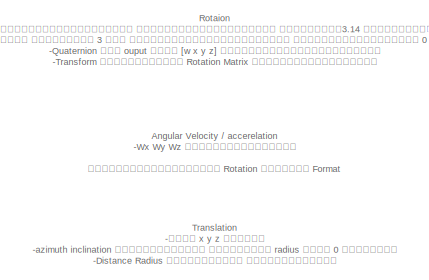
[diagram: root canvas - part 1/5, top left region]
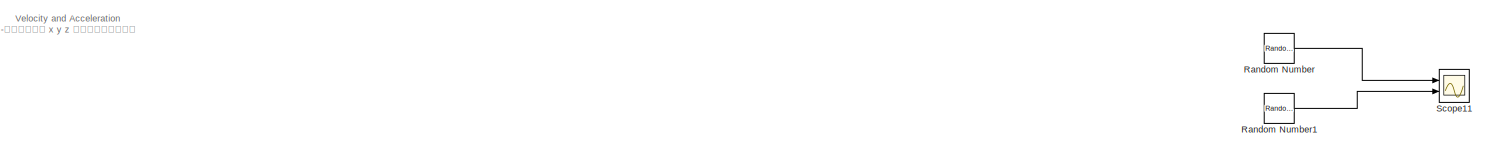
[diagram: root canvas - part 2/5, full width, top band]
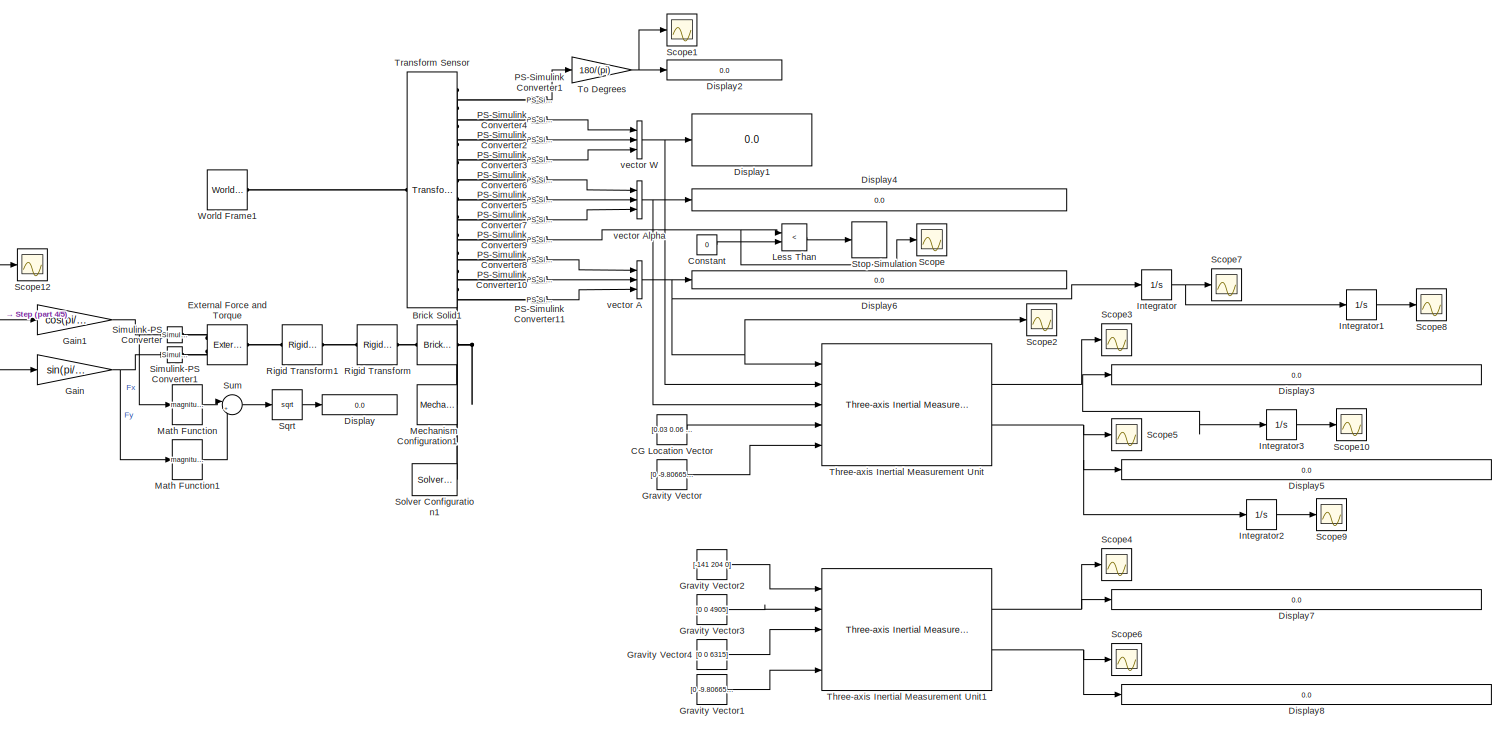
[diagram: root canvas - part 3/5, full width, middle band]
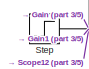
[diagram: root canvas - part 4/5, middle left region]
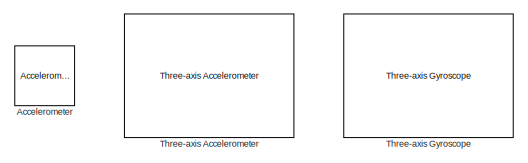
[diagram: root canvas - part 5/5, bottom right region]
MODEL slx_b63a206c69d0
KIND model
CONFIG AbsTol = auto
CONFIG EnableMultiTasking = off
CONFIG FixedStep = auto
CONFIG MaxStep = auto
CONFIG MinStep = auto
CONFIG RelTol = 1e-3
CONFIG SampleTimeConstraint = Unconstrained
CONFIG SolverName = VariableStepAuto
CONFIG StartTime = 0.0
CONFIG StopTime = 10
BLOCK [Reference] Accelerometer  REF=ee_lib/Sensors &
Transducers/Accelerometer
  Commented = on
  Ports = [0, 0, 0, 0, 0, 1, 2]
  SourceBlock = ee_lib/Sensors &\nTransducers/Accelerometer
  SourceProductBaseCode = PS
  SourceType = Accelerometer
BLOCK [Reference] Brick Solid1  REF=sm_lib/Body Elements/Brick Solid
  NameLocation = top
  Ports = [0, 0, 0, 0, 0, 1, 1]
  SourceBlock = sm_lib/Body Elements/Brick Solid
  SourceProductBaseCode = MS
  SourceType = Brick Solid
BLOCK [Constant] CG Location Vector
  Commented = on
  Value = [0.03 0.06 0.005]
BLOCK [Constant] Constant
  Value = 0
BLOCK [Display] Display
  Decimation = 1
  Ports = [1]
BLOCK [Display] Display1
  Decimation = 1
  Format = long
  Ports = [1]
BLOCK [Display] Display2
  Decimation = 1
  Format = long
  Ports = [1]
BLOCK [Display] Display3
  Decimation = 1
  Format = long
  Ports = [1]
BLOCK [Display] Display4
  Decimation = 1
  Format = long
  Ports = [1]
BLOCK [Display] Display5
  Decimation = 1
  Format = long
  Ports = [1]
BLOCK [Display] Display6
  Decimation = 1
  Format = long
  Ports = [1]
BLOCK [Display] Display7
  Decimation = 1
  Format = long
  Ports = [1]
BLOCK [Display] Display8
  Decimation = 1
  Format = long
  Ports = [1]
BLOCK [Reference] External Force and Torque  REF=sm_lib/Forces and
Torques/External Force
and Torque
  Ports = [0, 0, 0, 0, 0, 2, 1]
  SourceBlock = sm_lib/Forces and\nTorques/External Force\nand Torque
  SourceProductBaseCode = MS
  SourceType = External Force\nand Torque
BLOCK [Gain] Gain
  Gain = sin(pi/6)
BLOCK [Gain] Gain1
  Gain = cos(pi/6)
BLOCK [Constant] Gravity Vector
  Value = [0 -9.80665 0]
BLOCK [Constant] Gravity Vector1
  Value = [0 -9.80665 0]
BLOCK [Constant] Gravity Vector2
  Value = [-141 204 0]
BLOCK [Constant] Gravity Vector3
  Value = [0 0 4905]
BLOCK [Constant] Gravity Vector4
  Value = [0 0 6315]
BLOCK [Integrator] Integrator
  Ports = [1, 1]
BLOCK [Integrator] Integrator1
  Ports = [1, 1]
BLOCK [Integrator] Integrator2
  Ports = [1, 1]
BLOCK [Integrator] Integrator3
  Ports = [1, 1]
BLOCK [RelationalOperator] Less Than
  InputSameDT = off
  Operator = <
  OutDataTypeStr = boolean
  Ports = [2, 1]
  RndMeth = Simplest
BLOCK [Math] Math Function
  Operator = magnitude^2
  Ports = [1, 1]
BLOCK [Math] Math Function1
  Operator = magnitude^2
  Ports = [1, 1]
BLOCK [Reference] Mechanism Configuration1  REF=sm_lib/Utilities/Mechanism
Configuration
  Ports = [0, 0, 0, 0, 0, 0, 1]
  SourceBlock = sm_lib/Utilities/Mechanism\nConfiguration
  SourceProductBaseCode = MS
  SourceType = Mechanism\nConfiguration
BLOCK [Reference] PS-Simulink Converter1  REF=nesl_utility/PS-Simulink
Converter
  Ports = [0, 1, 0, 0, 0, 1]
  SourceBlock = nesl_utility/PS-Simulink\nConverter
  SourceProductBaseCode = PW,SS
  SourceType = PS-Simulink\nConverter
BLOCK [Reference] PS-Simulink Converter10  REF=nesl_utility/PS-Simulink
Converter
  Ports = [0, 1, 0, 0, 0, 1]
  SourceBlock = nesl_utility/PS-Simulink\nConverter
  SourceProductBaseCode = PW,SS
  SourceType = PS-Simulink\nConverter
BLOCK [Reference] PS-Simulink Converter11  REF=nesl_utility/PS-Simulink
Converter
  Ports = [0, 1, 0, 0, 0, 1]
  SourceBlock = nesl_utility/PS-Simulink\nConverter
  SourceProductBaseCode = PW,SS
  SourceType = PS-Simulink\nConverter
BLOCK [Reference] PS-Simulink Converter2  REF=nesl_utility/PS-Simulink
Converter
  Ports = [0, 1, 0, 0, 0, 1]
  SourceBlock = nesl_utility/PS-Simulink\nConverter
  SourceProductBaseCode = PW,SS
  SourceType = PS-Simulink\nConverter
BLOCK [Reference] PS-Simulink Converter3  REF=nesl_utility/PS-Simulink
Converter
  Ports = [0, 1, 0, 0, 0, 1]
  SourceBlock = nesl_utility/PS-Simulink\nConverter
  SourceProductBaseCode = PW,SS
  SourceType = PS-Simulink\nConverter
BLOCK [Reference] PS-Simulink Converter4  REF=nesl_utility/PS-Simulink
Converter
  Ports = [0, 1, 0, 0, 0, 1]
  SourceBlock = nesl_utility/PS-Simulink\nConverter
  SourceProductBaseCode = PW,SS
  SourceType = PS-Simulink\nConverter
BLOCK [Reference] PS-Simulink Converter5  REF=nesl_utility/PS-Simulink
Converter
  Ports = [0, 1, 0, 0, 0, 1]
  SourceBlock = nesl_utility/PS-Simulink\nConverter
  SourceProductBaseCode = PW,SS
  SourceType = PS-Simulink\nConverter
BLOCK [Reference] PS-Simulink Converter6  REF=nesl_utility/PS-Simulink
Converter
  Ports = [0, 1, 0, 0, 0, 1]
  SourceBlock = nesl_utility/PS-Simulink\nConverter
  SourceProductBaseCode = PW,SS
  SourceType = PS-Simulink\nConverter
BLOCK [Reference] PS-Simulink Converter7  REF=nesl_utility/PS-Simulink
Converter
  Ports = [0, 1, 0, 0, 0, 1]
  SourceBlock = nesl_utility/PS-Simulink\nConverter
  SourceProductBaseCode = PW,SS
  SourceType = PS-Simulink\nConverter
BLOCK [Reference] PS-Simulink Converter8  REF=nesl_utility/PS-Simulink
Converter
  Ports = [0, 1, 0, 0, 0, 1]
  SourceBlock = nesl_utility/PS-Simulink\nConverter
  SourceProductBaseCode = PW,SS
  SourceType = PS-Simulink\nConverter
BLOCK [Reference] PS-Simulink Converter9  REF=nesl_utility/PS-Simulink
Converter
  Ports = [0, 1, 0, 0, 0, 1]
  SourceBlock = nesl_utility/PS-Simulink\nConverter
  SourceProductBaseCode = PW,SS
  SourceType = PS-Simulink\nConverter
BLOCK [RandomNumber] Random Number
  SampleTime = 0.1
BLOCK [RandomNumber] Random Number1
  SampleTime = 0.1
  Variance = 2
BLOCK [Reference] Rigid Transform  REF=sm_lib/Frames and
Transforms/Rigid
Transform
  Ports = [0, 0, 0, 0, 0, 1, 1]
  SourceBlock = sm_lib/Frames and\nTransforms/Rigid\nTransform
  SourceProductBaseCode = MS
  SourceType = Rigid\nTransform
BLOCK [Reference] Rigid Transform1  REF=sm_lib/Frames and
Transforms/Rigid
Transform
  Ports = [0, 0, 0, 0, 0, 1, 1]
  SourceBlock = sm_lib/Frames and\nTransforms/Rigid\nTransform
  SourceProductBaseCode = MS
  SourceType = Rigid\nTransform
BLOCK [Scope] Scope
  Floating = off
  NumInputPorts = 1
  Ports = [1]
  ScopeSpecificationString = Simulink.scopes.TimeScopeBlockCfg('CurrentConfiguration', extmgr.ConfigurationSet(extmgr.Configuration('Core','General UI',true),extmgr.Configuration('Core','Source UI',true),extmgr.Configuration('Sources','WiredSimulink',true),extmgr.Configuration('Visuals','Time Domain',true,'SerializedDisplays',{struct('MinYLimReal','-0.88632','MaxYLimReal','7.97686','YLabelReal','','MinYLimMag','0.00000','MaxY...<+1411ch>
BLOCK [Scope] Scope1
  Floating = off
  NumInputPorts = 1
  Ports = [1]
  ScopeSpecificationString = Simulink.scopes.TimeScopeBlockCfg('CurrentConfiguration', extmgr.ConfigurationSet(extmgr.Configuration('Core','General UI',true),extmgr.Configuration('Core','Source UI',true),extmgr.Configuration('Sources','WiredSimulink',true,'DataLoggingVariableName','ScopeData3'),extmgr.Configuration('Visuals','Time Domain',true,'SerializedDisplays',{struct('MinYLimReal','75.14075','MaxYLimReal','188.60119','YL...<+1423ch>
BLOCK [Scope] Scope10
  Floating = off
  NumInputPorts = 1
  Ports = [1]
  ScopeSpecificationString = Simulink.scopes.TimeScopeBlockCfg('CurrentConfiguration', extmgr.ConfigurationSet(extmgr.Configuration('Core','General UI',true),extmgr.Configuration('Core','Source UI',true),extmgr.Configuration('Sources','WiredSimulink',true,'DataLoggingVariableName','ScopeData10'),extmgr.Configuration('Visuals','Time Domain',true,'SerializedDisplays',{struct('MinYLimReal','-0.62404','MaxYLimReal','5.53765','YLa...<+1577ch>
BLOCK [Scope] Scope11
  Floating = off
  NumInputPorts = 2
  Ports = [2]
  ScopeSpecificationString = Simulink.scopes.TimeScopeBlockCfg('CurrentConfiguration', extmgr.ConfigurationSet(extmgr.Configuration('Core','General UI',true),extmgr.Configuration('Core','Source UI',true),extmgr.Configuration('Sources','WiredSimulink',true,'DataLoggingVariableName','ScopeData1'),extmgr.Configuration('Visuals','Time Domain',true,'SerializedDisplays',{struct('MinYLimReal','0.63708','MaxYLimReal','0.64848','YLabe...<+1431ch>
BLOCK [Scope] Scope12
  Floating = off
  NumInputPorts = 1
  Ports = [1]
  ScopeSpecificationString = Simulink.scopes.TimeScopeBlockCfg('CurrentConfiguration', extmgr.ConfigurationSet(extmgr.Configuration('Core','General UI',true),extmgr.Configuration('Core','Source UI',true),extmgr.Configuration('Sources','WiredSimulink',true,'DataLoggingVariableName','ScopeData1'),extmgr.Configuration('Visuals','Time Domain',true,'SerializedDisplays',{struct('MinYLimReal','-37.5','MaxYLimReal','337.5','YLabelRea...<+1374ch>
BLOCK [Scope] Scope2
  Floating = off
  NumInputPorts = 1
  Ports = [1]
  ScopeSpecificationString = Simulink.scopes.TimeScopeBlockCfg('CurrentConfiguration', extmgr.ConfigurationSet(extmgr.Configuration('Core','General UI',true),extmgr.Configuration('Core','Source UI',true),extmgr.Configuration('Sources','WiredSimulink',true,'DataLoggingVariableName','ScopeData4'),extmgr.Configuration('Visuals','Time Domain',true,'SerializedDisplays',{struct('MinYLimReal','-331.37886','MaxYLimReal','321.56157','...<+1514ch>
BLOCK [Scope] Scope3
  Floating = off
  NumInputPorts = 1
  Ports = [1]
  ScopeSpecificationString = Simulink.scopes.TimeScopeBlockCfg('CurrentConfiguration', extmgr.ConfigurationSet(extmgr.Configuration('Core','General UI',true),extmgr.Configuration('Core','Source UI',true),extmgr.Configuration('Sources','WiredSimulink',true,'DataLoggingVariableName','ScopeData1'),extmgr.Configuration('Visuals','Time Domain',true,'SerializedDisplays',{struct('MinYLimReal','305.18548','MaxYLimReal','479.02666','Y...<+1739ch>
BLOCK [Scope] Scope4
  Floating = off
  NumInputPorts = 1
  Ports = [1]
  ScopeSpecificationString = Simulink.scopes.TimeScopeBlockCfg('CurrentConfiguration', extmgr.ConfigurationSet(extmgr.Configuration('Core','General UI',true),extmgr.Configuration('Core','Source UI',true),extmgr.Configuration('Sources','WiredSimulink',true,'DataLoggingVariableName','ScopeData5'),extmgr.Configuration('Visuals','Time Domain',true,'SerializedDisplays',{struct('MinYLimReal','-193.35798','MaxYLimReal','269.23622','...<+1742ch>
BLOCK [Scope] Scope5
  Floating = off
  NumInputPorts = 1
  Ports = [1]
  ScopeSpecificationString = Simulink.scopes.TimeScopeBlockCfg('CurrentConfiguration', extmgr.ConfigurationSet(extmgr.Configuration('Core','General UI',true),extmgr.Configuration('Core','Source UI',true),extmgr.Configuration('Sources','WiredSimulink',true,'DataLoggingVariableName','ScopeData2'),extmgr.Configuration('Visuals','Time Domain',true,'SerializedDisplays',{struct('MinYLimReal','-606.95413','MaxYLimReal','5461.91799',...<+1710ch>
BLOCK [Scope] Scope6
  Floating = off
  NumInputPorts = 1
  Ports = [1]
  ScopeSpecificationString = Simulink.scopes.TimeScopeBlockCfg('CurrentConfiguration', extmgr.ConfigurationSet(extmgr.Configuration('Core','General UI',true),extmgr.Configuration('Core','Source UI',true),extmgr.Configuration('Sources','WiredSimulink',true,'DataLoggingVariableName','ScopeData6'),extmgr.Configuration('Visuals','Time Domain',true,'SerializedDisplays',{struct('MinYLimReal','-607.40114','MaxYLimReal','5465.94108',...<+1710ch>
BLOCK [Scope] Scope7
  Floating = off
  NumInputPorts = 1
  Ports = [1]
  ScopeSpecificationString = Simulink.scopes.TimeScopeBlockCfg('CurrentConfiguration', extmgr.ConfigurationSet(extmgr.Configuration('Core','General UI',true),extmgr.Configuration('Core','Source UI',true),extmgr.Configuration('Sources','WiredSimulink',true,'DataLoggingVariableName','ScopeData7'),extmgr.Configuration('Visuals','Time Domain',true,'SerializedDisplays',{struct('MinYLimReal','-4.7009','MaxYLimReal','5.99198','YLabe...<+1567ch>
BLOCK [Scope] Scope8
  Floating = off
  NumInputPorts = 1
  Ports = [1]
  ScopeSpecificationString = Simulink.scopes.TimeScopeBlockCfg('CurrentConfiguration', extmgr.ConfigurationSet(extmgr.Configuration('Core','General UI',true),extmgr.Configuration('Core','Source UI',true),extmgr.Configuration('Sources','WiredSimulink',true,'DataLoggingVariableName','ScopeData8'),extmgr.Configuration('Visuals','Time Domain',true,'SerializedDisplays',{struct('MinYLimReal','-0.1167','MaxYLimReal','1.05026','YLabe...<+1570ch>
BLOCK [Scope] Scope9
  Floating = off
  NumInputPorts = 1
  Ports = [1]
  ScopeSpecificationString = Simulink.scopes.TimeScopeBlockCfg('CurrentConfiguration', extmgr.ConfigurationSet(extmgr.Configuration('Core','General UI',true),extmgr.Configuration('Core','Source UI',true),extmgr.Configuration('Sources','WiredSimulink',true,'DataLoggingVariableName','ScopeData9'),extmgr.Configuration('Visuals','Time Domain',true,'SerializedDisplays',{struct('MinYLimReal','-233.02086','MaxYLimReal','2097.05017',...<+1594ch>
BLOCK [Reference] Simulink-PS Converter  REF=nesl_utility/Simulink-PS
Converter
  Ports = [1, 0, 0, 0, 0, 0, 1]
  SourceBlock = nesl_utility/Simulink-PS\nConverter
  SourceProductBaseCode = PW,SS
  SourceType = Simulink-PS\nConverter
BLOCK [Reference] Simulink-PS Converter1  REF=nesl_utility/Simulink-PS
Converter
  Ports = [1, 0, 0, 0, 0, 0, 1]
  SourceBlock = nesl_utility/Simulink-PS\nConverter
  SourceProductBaseCode = PW,SS
  SourceType = Simulink-PS\nConverter
BLOCK [Reference] Solver Configuration1  REF=nesl_utility/Solver
Configuration
  Ports = [0, 0, 0, 0, 0, 0, 1]
  SourceBlock = nesl_utility/Solver\nConfiguration
  SourceProductBaseCode = PW,SS
  SourceType = Solver\nConfiguration
BLOCK [Sqrt] Sqrt
BLOCK [Step] Step
  After = 0
  Before = 300
  SampleTime = 0
  Time = 0.01
BLOCK [Stop] Stop Simulation
BLOCK [Sum] Sum
  Inputs = |++
  Ports = [2, 1]
BLOCK [Reference] Three-axis Accelerometer  REF=aerolibnav/Three-axis Accelerometer
  Commented = on
  Ports = [5, 1]
  SourceBlock = aerolibnav/Three-axis Accelerometer
  SourceProductBaseCode = AE
  SourceType = Three-axis Accelerometer
BLOCK [Reference] Three-axis Gyroscope  REF=aerolibnav/Three-axis Gyroscope
  Commented = on
  Ports = [2, 1]
  SourceBlock = aerolibnav/Three-axis Gyroscope
  SourceProductBaseCode = AE
  SourceType = Three-axis Gyroscope
BLOCK [Reference] Three-axis Inertial Measurement Unit  REF=aerolibnav/Three-axis Inertial
Measurement Unit
  Ports = [5, 2]
  SourceBlock = aerolibnav/Three-axis Inertial\nMeasurement Unit
  SourceProductBaseCode = AE
  SourceType = Three-axis Inertial Measurement Unit
BLOCK [Reference] Three-axis Inertial Measurement Unit1  REF=aerolibnav/Three-axis Inertial
Measurement Unit
  Ports = [5, 2]
  SourceBlock = aerolibnav/Three-axis Inertial\nMeasurement Unit
  SourceProductBaseCode = AE
  SourceType = Three-axis Inertial Measurement Unit
BLOCK [Gain] To Degrees
  Gain = 180/(pi)
  NameLocation = top
BLOCK [Reference] Transform Sensor  REF=sm_lib/Frames and
Transforms/Transform
Sensor
  Ports = [0, 0, 0, 0, 0, 1, 12]
  SourceBlock = sm_lib/Frames and\nTransforms/Transform\nSensor
  SourceProductBaseCode = MS
  SourceType = Transform\nSensor
BLOCK [Reference] World Frame1  REF=sm_lib/Frames and
Transforms/World Frame
  Ports = [0, 0, 0, 0, 0, 0, 1]
  SourceBlock = sm_lib/Frames and\nTransforms/World Frame
  SourceProductBaseCode = MS
  SourceType = World Frame
BLOCK [Concatenate] vector A
  NameLocation = top
  NumInputs = 3
  Ports = [3, 1]
BLOCK [Concatenate] vector Alpha
  NameLocation = top
  NumInputs = 3
  Ports = [3, 1]
BLOCK [Concatenate] vector W
  NameLocation = top
  NumInputs = 3
  Ports = [3, 1]
ANNOTATION (root): Angular Velocity / accerelation -Wx Wy Wz ตามภาพข้างขวาเลย ส่วนอันอื่นก็เหมือน Rotation เลยเป็น Format
ANNOTATION (root): Rotaion -Angle หน่วยเป็นอะไรไม่รู้ แต่ถ้าจะแปลงเป็นองศา เอาค่าหาร3.14 แล้วคูณด้วย 180 -Axis ไม่รู้ มันให้ค่า 3 ค่า คิดว่าน่าจะเป็นแต่ละแกน แต่ให้ค่าออกมาเป็น 0 1 ไม่เข้าใจ -Quaternion ให้ ouput เป็น [w x y z] เป็นรูปแบบของอะไรไม่รู้ -Transform ให้ออกมาเป็น Rotation Matrix แบบที่เรียนจารหยุน
ANNOTATION (root): Translation -ระยะ x y z ตรงตัว -azimuth inclination ไม่รู้คืออะไร มันบอกว่า radius เป็น 0 หาไม่ได้ -Distance Radius คือไรไม่รู้ ได้ค่าเท่ากัน
ANNOTATION (root): Velocity and Acceleration -ได้แค่ x y z ตามนั้นอะ
LINE CG Location Vector:1 -> Three-axis Inertial Measurement Unit:4
LINE Constant:1 -> Less Than:2
NET Gain1:1 -> Math Function:1, Simulink-PS Converter:1
NET Gain:1 -> Math Function1:1, Simulink-PS Converter1:1
LINE Gravity Vector1:1 -> Three-axis Inertial Measurement Unit1:5
LINE Gravity Vector2:1 -> Three-axis Inertial Measurement Unit1:1
LINE Gravity Vector3:1 -> Three-axis Inertial Measurement Unit1:2
LINE Gravity Vector4:1 -> Three-axis Inertial Measurement Unit1:3
LINE Gravity Vector:1 -> Three-axis Inertial Measurement Unit:5
LINE Integrator1:1 -> Scope8:1
LINE Integrator2:1 -> Scope9:1
LINE Integrator3:1 -> Scope10:1
NET Integrator:1 -> Integrator1:1, Scope7:1
LINE Less Than:1 -> Stop Simulation:1
LINE Math Function1:1 -> Sum:2
LINE Math Function:1 -> Sum:1
LINE PS-Simulink Converter10:1 -> vector A:2
LINE PS-Simulink Converter11:1 -> vector A:3
LINE PS-Simulink Converter1:1 -> To Degrees:1
LINE PS-Simulink Converter2:1 -> vector W:2
LINE PS-Simulink Converter3:1 -> vector W:3
LINE PS-Simulink Converter4:1 -> vector W:1
LINE PS-Simulink Converter5:1 -> vector Alpha:2
LINE PS-Simulink Converter6:1 -> vector Alpha:1
LINE PS-Simulink Converter7:1 -> vector Alpha:3
LINE PS-Simulink Converter8:1 -> vector A:1
NET PS-Simulink Converter9:1 -> Less Than:1, Scope:1
LINE Random Number1:1 -> Scope11:2
LINE Random Number:1 -> Scope11:1
LINE Sqrt:1 -> Display:1
NET Step:1 -> Gain1:1, Gain:1, Scope12:1
LINE Sum:1 -> Sqrt:1
NET Three-axis Inertial Measurement Unit1:1 -> Display7:1, Scope4:1
NET Three-axis Inertial Measurement Unit1:2 -> Display8:1, Scope6:1
NET Three-axis Inertial Measurement Unit:1 -> Display3:1, Integrator3:1, Scope3:1
NET Three-axis Inertial Measurement Unit:2 -> Display5:1, Integrator2:1, Scope5:1
NET To Degrees:1 -> Display2:1, Scope1:1
NET vector A:1 -> Display6:1, Integrator:1, Scope2:1, Three-axis Inertial Measurement Unit:1
NET vector Alpha:1 -> Display4:1, Three-axis Inertial Measurement Unit:3
NET vector W:1 -> Display1:1, Three-axis Inertial Measurement Unit:2
PNET net1: Brick Solid1:LConn1 -- Mechanism Configuration1:RConn1 -- Solver Configuration1:RConn1 -- Transform Sensor:RConn1
PLINE Brick Solid1:RConn1 -- Rigid Transform:RConn1
PLINE External Force and Torque:LConn1 -- Simulink-PS Converter:RConn1
PLINE External Force and Torque:LConn2 -- Simulink-PS Converter1:RConn1
PLINE External Force and Torque:RConn1 -- Rigid Transform1:LConn1
PLINE PS-Simulink Converter10:LConn1 -- Transform Sensor:RConn11
PLINE PS-Simulink Converter11:LConn1 -- Transform Sensor:RConn12
PLINE PS-Simulink Converter1:LConn1 -- Transform Sensor:RConn2
PLINE PS-Simulink Converter2:LConn1 -- Transform Sensor:RConn4
PLINE PS-Simulink Converter3:LConn1 -- Transform Sensor:RConn5
PLINE PS-Simulink Converter4:LConn1 -- Transform Sensor:RConn3
PLINE PS-Simulink Converter5:LConn1 -- Transform Sensor:RConn7
PLINE PS-Simulink Converter6:LConn1 -- Transform Sensor:RConn6
PLINE PS-Simulink Converter7:LConn1 -- Transform Sensor:RConn8
PLINE PS-Simulink Converter8:LConn1 -- Transform Sensor:RConn10
PLINE PS-Simulink Converter9:LConn1 -- Transform Sensor:RConn9
PLINE Rigid Transform1:RConn1 -- Rigid Transform:LConn1
PLINE Transform Sensor:LConn1 -- World Frame1:RConn1
note: NET lines group one-source signal fan-out (src -> all destinations, sorted); 1:1 wires keep LINE; PNET lines group multi-terminal physical nets as a canonical sorted terminal list (undirected conserving connections); 2-terminal nets keep the pairwise PLINE form
